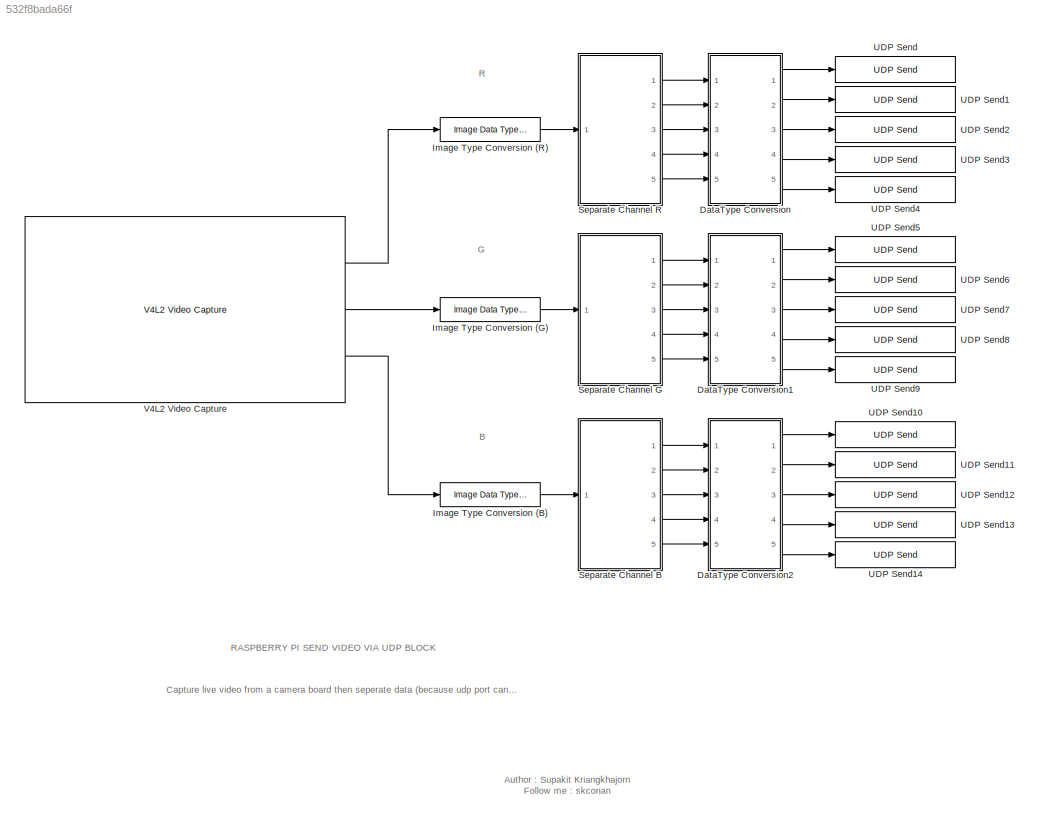
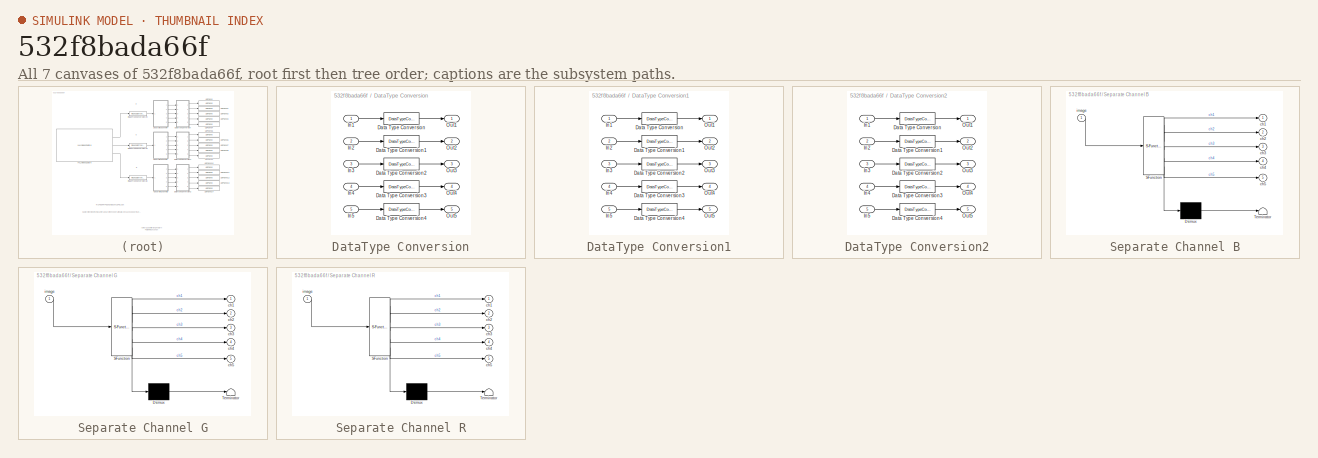
[diagram: thumbnail index - all 7 canvases of the model, root first then tree order]
MODEL slx_532f8bada66f
KIND model
CONFIG AbsTol = auto
CONFIG EnableMultiTasking = off
CONFIG FixedStep = auto
CONFIG MaxStep = auto
CONFIG MinStep = auto
CONFIG RelTol = 1e-3
CONFIG SampleTimeConstraint = Unconstrained
CONFIG Solver = FixedStepAuto
CONFIG SolverName = FixedStepAuto
CONFIG StartTime = 0.0
CONFIG StopTime = 10.0
BLOCK [SubSystem] DataType Conversion
  Ports = [5, 5]
  RequestExecContextInheritance = off
  Variant = off
BLOCK [DataTypeConversion] DataType Conversion/Data Type Conversion
  OutDataTypeStr = uint8
  RndMeth = Floor
  SaturateOnIntegerOverflow = off
BLOCK [DataTypeConversion] DataType Conversion/Data Type Conversion1
  OutDataTypeStr = uint8
  RndMeth = Floor
  SaturateOnIntegerOverflow = off
BLOCK [DataTypeConversion] DataType Conversion/Data Type Conversion2
  OutDataTypeStr = uint8
  RndMeth = Floor
  SaturateOnIntegerOverflow = off
BLOCK [DataTypeConversion] DataType Conversion/Data Type Conversion3
  OutDataTypeStr = uint8
  RndMeth = Floor
  SaturateOnIntegerOverflow = off
BLOCK [DataTypeConversion] DataType Conversion/Data Type Conversion4
  OutDataTypeStr = uint8
  RndMeth = Floor
  SaturateOnIntegerOverflow = off
BLOCK [Inport] DataType Conversion/In1
  IconDisplay = Port number
BLOCK [Inport] DataType Conversion/In2
  IconDisplay = Port number
  Port = 2
BLOCK [Inport] DataType Conversion/In3
  IconDisplay = Port number
  Port = 3
BLOCK [Inport] DataType Conversion/In4
  IconDisplay = Port number
  Port = 4
BLOCK [Inport] DataType Conversion/In5
  IconDisplay = Port number
  Port = 5
BLOCK [Outport] DataType Conversion/Out1
  IconDisplay = Port number
BLOCK [Outport] DataType Conversion/Out2
  IconDisplay = Port number
  Port = 2
BLOCK [Outport] DataType Conversion/Out3
  IconDisplay = Port number
  Port = 3
BLOCK [Outport] DataType Conversion/Out4
  IconDisplay = Port number
  Port = 4
BLOCK [Outport] DataType Conversion/Out5
  IconDisplay = Port number
  Port = 5
BLOCK [SubSystem] DataType Conversion1
  Ports = [5, 5]
  RequestExecContextInheritance = off
  Variant = off
BLOCK [DataTypeConversion] DataType Conversion1/Data Type Conversion
  OutDataTypeStr = uint8
  RndMeth = Floor
  SaturateOnIntegerOverflow = off
BLOCK [DataTypeConversion] DataType Conversion1/Data Type Conversion1
  OutDataTypeStr = uint8
  RndMeth = Floor
  SaturateOnIntegerOverflow = off
BLOCK [DataTypeConversion] DataType Conversion1/Data Type Conversion2
  OutDataTypeStr = uint8
  RndMeth = Floor
  SaturateOnIntegerOverflow = off
BLOCK [DataTypeConversion] DataType Conversion1/Data Type Conversion3
  OutDataTypeStr = uint8
  RndMeth = Floor
  SaturateOnIntegerOverflow = off
BLOCK [DataTypeConversion] DataType Conversion1/Data Type Conversion4
  OutDataTypeStr = uint8
  RndMeth = Floor
  SaturateOnIntegerOverflow = off
BLOCK [Inport] DataType Conversion1/In1
  IconDisplay = Port number
BLOCK [Inport] DataType Conversion1/In2
  IconDisplay = Port number
  Port = 2
BLOCK [Inport] DataType Conversion1/In3
  IconDisplay = Port number
  Port = 3
BLOCK [Inport] DataType Conversion1/In4
  IconDisplay = Port number
  Port = 4
BLOCK [Inport] DataType Conversion1/In5
  IconDisplay = Port number
  Port = 5
BLOCK [Outport] DataType Conversion1/Out1
  IconDisplay = Port number
BLOCK [Outport] DataType Conversion1/Out2
  IconDisplay = Port number
  Port = 2
BLOCK [Outport] DataType Conversion1/Out3
  IconDisplay = Port number
  Port = 3
BLOCK [Outport] DataType Conversion1/Out4
  IconDisplay = Port number
  Port = 4
BLOCK [Outport] DataType Conversion1/Out5
  IconDisplay = Port number
  Port = 5
BLOCK [SubSystem] DataType Conversion2
  Ports = [5, 5]
  RequestExecContextInheritance = off
  Variant = off
BLOCK [DataTypeConversion] DataType Conversion2/Data Type Conversion
  OutDataTypeStr = uint8
  RndMeth = Floor
  SaturateOnIntegerOverflow = off
BLOCK [DataTypeConversion] DataType Conversion2/Data Type Conversion1
  OutDataTypeStr = uint8
  RndMeth = Floor
  SaturateOnIntegerOverflow = off
BLOCK [DataTypeConversion] DataType Conversion2/Data Type Conversion2
  OutDataTypeStr = uint8
  RndMeth = Floor
  SaturateOnIntegerOverflow = off
BLOCK [DataTypeConversion] DataType Conversion2/Data Type Conversion3
  OutDataTypeStr = uint8
  RndMeth = Floor
  SaturateOnIntegerOverflow = off
BLOCK [DataTypeConversion] DataType Conversion2/Data Type Conversion4
  OutDataTypeStr = uint8
  RndMeth = Floor
  SaturateOnIntegerOverflow = off
BLOCK [Inport] DataType Conversion2/In1
  IconDisplay = Port number
BLOCK [Inport] DataType Conversion2/In2
  IconDisplay = Port number
  Port = 2
BLOCK [Inport] DataType Conversion2/In3
  IconDisplay = Port number
  Port = 3
BLOCK [Inport] DataType Conversion2/In4
  IconDisplay = Port number
  Port = 4
BLOCK [Inport] DataType Conversion2/In5
  IconDisplay = Port number
  Port = 5
BLOCK [Outport] DataType Conversion2/Out1
  IconDisplay = Port number
BLOCK [Outport] DataType Conversion2/Out2
  IconDisplay = Port number
  Port = 2
BLOCK [Outport] DataType Conversion2/Out3
  IconDisplay = Port number
  Port = 3
BLOCK [Outport] DataType Conversion2/Out4
  IconDisplay = Port number
  Port = 4
BLOCK [Outport] DataType Conversion2/Out5
  IconDisplay = Port number
  Port = 5
BLOCK [Reference] Image Type Conversion (B)   REF=visionconversions/Image Data Type
Conversion
  Ports = [1, 1]
  SourceBlock = visionconversions/Image Data Type\nConversion
  SourceType = Image Data Type Conversion
BLOCK [Reference] Image Type Conversion (G)   REF=visionconversions/Image Data Type
Conversion
  Ports = [1, 1]
  SourceBlock = visionconversions/Image Data Type\nConversion
  SourceType = Image Data Type Conversion
BLOCK [Reference] Image Type Conversion (R)   REF=visionconversions/Image Data Type
Conversion
  Ports = [1, 1]
  SourceBlock = visionconversions/Image Data Type\nConversion
  SourceType = Image Data Type Conversion
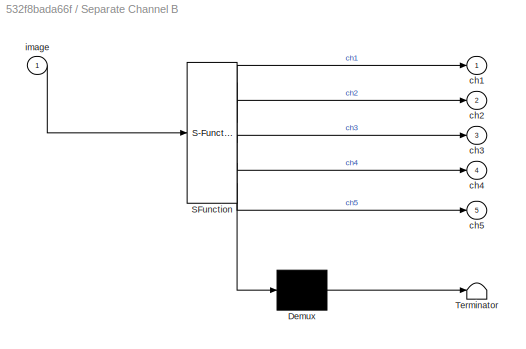
BLOCK [SubSystem] Separate Channel B
  ErrorFcn = Stateflow.Translate.translate
  PermitHierarchicalResolution = ExplicitOnly
  Ports = [1, 5]
  RequestExecContextInheritance = off
  SFBlockType = MATLAB Function
  TreatAsAtomicUnit = on
  Variant = off
BLOCK [Demux] Separate Channel B/ Demux 
  Outputs = 1
  Ports = [1, 1]
BLOCK [S-Function] Separate Channel B/ SFunction 
  EnableBusSupport = on
  FunctionName = sf_sfun
  PortCounts = [1 6]
  Ports = [1, 6]
  SFcnIsStateOwnerBlock = off
  SFunctionDeploymentMode = off
  Tag = Stateflow S-Function raspberry_pi_send_video 3
BLOCK [Terminator] Separate Channel B/ Terminator 
BLOCK [Outport] Separate Channel B/ch1
  IconDisplay = Port number
BLOCK [Outport] Separate Channel B/ch2
  IconDisplay = Port number
  Port = 2
BLOCK [Outport] Separate Channel B/ch3
  IconDisplay = Port number
  Port = 3
BLOCK [Outport] Separate Channel B/ch4
  IconDisplay = Port number
  Port = 4
BLOCK [Outport] Separate Channel B/ch5
  IconDisplay = Port number
  Port = 5
BLOCK [Inport] Separate Channel B/image
  IconDisplay = Port number
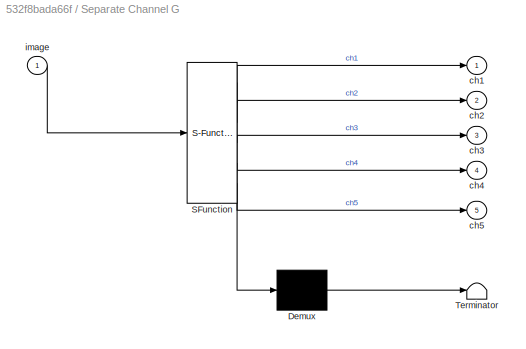
BLOCK [SubSystem] Separate Channel G
  ErrorFcn = Stateflow.Translate.translate
  PermitHierarchicalResolution = ExplicitOnly
  Ports = [1, 5]
  RequestExecContextInheritance = off
  SFBlockType = MATLAB Function
  TreatAsAtomicUnit = on
  Variant = off
BLOCK [Demux] Separate Channel G/ Demux 
  Outputs = 1
  Ports = [1, 1]
BLOCK [S-Function] Separate Channel G/ SFunction 
  EnableBusSupport = on
  FunctionName = sf_sfun
  PortCounts = [1 6]
  Ports = [1, 6]
  SFcnIsStateOwnerBlock = off
  SFunctionDeploymentMode = off
  Tag = Stateflow S-Function raspberry_pi_send_video 1
BLOCK [Terminator] Separate Channel G/ Terminator 
BLOCK [Outport] Separate Channel G/ch1
  IconDisplay = Port number
BLOCK [Outport] Separate Channel G/ch2
  IconDisplay = Port number
  Port = 2
BLOCK [Outport] Separate Channel G/ch3
  IconDisplay = Port number
  Port = 3
BLOCK [Outport] Separate Channel G/ch4
  IconDisplay = Port number
  Port = 4
BLOCK [Outport] Separate Channel G/ch5
  IconDisplay = Port number
  Port = 5
BLOCK [Inport] Separate Channel G/image
  IconDisplay = Port number
BLOCK [SubSystem] Separate Channel R
  ErrorFcn = Stateflow.Translate.translate
  PermitHierarchicalResolution = ExplicitOnly
  Ports = [1, 5]
  RequestExecContextInheritance = off
  SFBlockType = MATLAB Function
  TreatAsAtomicUnit = on
  Variant = off
BLOCK [Demux] Separate Channel R/ Demux 
  Outputs = 1
  Ports = [1, 1]
BLOCK [S-Function] Separate Channel R/ SFunction 
  EnableBusSupport = on
  FunctionName = sf_sfun
  PortCounts = [1 6]
  Ports = [1, 6]
  SFcnIsStateOwnerBlock = off
  SFunctionDeploymentMode = off
  Tag = Stateflow S-Function raspberry_pi_send_video 2
BLOCK [Terminator] Separate Channel R/ Terminator 
BLOCK [Outport] Separate Channel R/ch1
  IconDisplay = Port number
BLOCK [Outport] Separate Channel R/ch2
  IconDisplay = Port number
  Port = 2
BLOCK [Outport] Separate Channel R/ch3
  IconDisplay = Port number
  Port = 3
BLOCK [Outport] Separate Channel R/ch4
  IconDisplay = Port number
  Port = 4
BLOCK [Outport] Separate Channel R/ch5
  IconDisplay = Port number
  Port = 5
BLOCK [Inport] Separate Channel R/image
  IconDisplay = Port number
BLOCK [Reference] UDP Send  REF=embdlinuxlib/UDP Send
  Ports = [1]
  SourceBlock = embdlinuxlib/UDP Send
  SourceType = UDP Send
BLOCK [Reference] UDP Send1  REF=embdlinuxlib/UDP Send
  Ports = [1]
  SourceBlock = embdlinuxlib/UDP Send
  SourceType = UDP Send
BLOCK [Reference] UDP Send10  REF=embdlinuxlib/UDP Send
  Ports = [1]
  SourceBlock = embdlinuxlib/UDP Send
  SourceType = UDP Send
BLOCK [Reference] UDP Send11  REF=embdlinuxlib/UDP Send
  Ports = [1]
  SourceBlock = embdlinuxlib/UDP Send
  SourceType = UDP Send
BLOCK [Reference] UDP Send12  REF=embdlinuxlib/UDP Send
  Ports = [1]
  SourceBlock = embdlinuxlib/UDP Send
  SourceType = UDP Send
BLOCK [Reference] UDP Send13  REF=embdlinuxlib/UDP Send
  Ports = [1]
  SourceBlock = embdlinuxlib/UDP Send
  SourceType = UDP Send
BLOCK [Reference] UDP Send14  REF=embdlinuxlib/UDP Send
  Ports = [1]
  SourceBlock = embdlinuxlib/UDP Send
  SourceType = UDP Send
BLOCK [Reference] UDP Send2  REF=embdlinuxlib/UDP Send
  Ports = [1]
  SourceBlock = embdlinuxlib/UDP Send
  SourceType = UDP Send
BLOCK [Reference] UDP Send3  REF=embdlinuxlib/UDP Send
  Ports = [1]
  SourceBlock = embdlinuxlib/UDP Send
  SourceType = UDP Send
BLOCK [Reference] UDP Send4  REF=embdlinuxlib/UDP Send
  Ports = [1]
  SourceBlock = embdlinuxlib/UDP Send
  SourceType = UDP Send
BLOCK [Reference] UDP Send5  REF=embdlinuxlib/UDP Send
  Ports = [1]
  SourceBlock = embdlinuxlib/UDP Send
  SourceType = UDP Send
BLOCK [Reference] UDP Send6  REF=embdlinuxlib/UDP Send
  Ports = [1]
  SourceBlock = embdlinuxlib/UDP Send
  SourceType = UDP Send
BLOCK [Reference] UDP Send7  REF=embdlinuxlib/UDP Send
  Ports = [1]
  SourceBlock = embdlinuxlib/UDP Send
  SourceType = UDP Send
BLOCK [Reference] UDP Send8  REF=embdlinuxlib/UDP Send
  Ports = [1]
  SourceBlock = embdlinuxlib/UDP Send
  SourceType = UDP Send
BLOCK [Reference] UDP Send9  REF=embdlinuxlib/UDP Send
  Ports = [1]
  SourceBlock = embdlinuxlib/UDP Send
  SourceType = UDP Send
BLOCK [Reference] V4L2 Video Capture  REF=embdlinuxlib/V4L2 Video Capture
  Ports = [0, 3]
  SourceBlock = embdlinuxlib/V4L2 Video Capture
  SourceType = V4L2 Video Capture
ANNOTATION (root): Capture live video from a camera board then seperate data (because udp port cannot send large data) and send data via udp port.
ANNOTATION (root): Author : Supakit Kriangkhajorn Follow me : skconan
ANNOTATION (root): B
ANNOTATION (root): G
ANNOTATION (root): R
ANNOTATION (root): RASPBERRY PI SEND VIDEO VIA UDP BLOCK
LINE DataType Conversion/Data Type Conversion1:1 -> DataType Conversion/Out2:1
LINE DataType Conversion/Data Type Conversion2:1 -> DataType Conversion/Out3:1
LINE DataType Conversion/Data Type Conversion3:1 -> DataType Conversion/Out4:1
LINE DataType Conversion/Data Type Conversion4:1 -> DataType Conversion/Out5:1
LINE DataType Conversion/Data Type Conversion:1 -> DataType Conversion/Out1:1
LINE DataType Conversion/In1:1 -> DataType Conversion/Data Type Conversion:1
LINE DataType Conversion/In2:1 -> DataType Conversion/Data Type Conversion1:1
LINE DataType Conversion/In3:1 -> DataType Conversion/Data Type Conversion2:1
LINE DataType Conversion/In4:1 -> DataType Conversion/Data Type Conversion3:1
LINE DataType Conversion/In5:1 -> DataType Conversion/Data Type Conversion4:1
LINE DataType Conversion1/Data Type Conversion1:1 -> DataType Conversion1/Out2:1
LINE DataType Conversion1/Data Type Conversion2:1 -> DataType Conversion1/Out3:1
LINE DataType Conversion1/Data Type Conversion3:1 -> DataType Conversion1/Out4:1
LINE DataType Conversion1/Data Type Conversion4:1 -> DataType Conversion1/Out5:1
LINE DataType Conversion1/Data Type Conversion:1 -> DataType Conversion1/Out1:1
LINE DataType Conversion1/In1:1 -> DataType Conversion1/Data Type Conversion:1
LINE DataType Conversion1/In2:1 -> DataType Conversion1/Data Type Conversion1:1
LINE DataType Conversion1/In3:1 -> DataType Conversion1/Data Type Conversion2:1
LINE DataType Conversion1/In4:1 -> DataType Conversion1/Data Type Conversion3:1
LINE DataType Conversion1/In5:1 -> DataType Conversion1/Data Type Conversion4:1
LINE DataType Conversion1:1 -> UDP Send5:1
LINE DataType Conversion1:2 -> UDP Send6:1
LINE DataType Conversion1:3 -> UDP Send7:1
LINE DataType Conversion1:4 -> UDP Send8:1
LINE DataType Conversion1:5 -> UDP Send9:1
LINE DataType Conversion2/Data Type Conversion1:1 -> DataType Conversion2/Out2:1
LINE DataType Conversion2/Data Type Conversion2:1 -> DataType Conversion2/Out3:1
LINE DataType Conversion2/Data Type Conversion3:1 -> DataType Conversion2/Out4:1
LINE DataType Conversion2/Data Type Conversion4:1 -> DataType Conversion2/Out5:1
LINE DataType Conversion2/Data Type Conversion:1 -> DataType Conversion2/Out1:1
LINE DataType Conversion2/In1:1 -> DataType Conversion2/Data Type Conversion:1
LINE DataType Conversion2/In2:1 -> DataType Conversion2/Data Type Conversion1:1
LINE DataType Conversion2/In3:1 -> DataType Conversion2/Data Type Conversion2:1
LINE DataType Conversion2/In4:1 -> DataType Conversion2/Data Type Conversion3:1
LINE DataType Conversion2/In5:1 -> DataType Conversion2/Data Type Conversion4:1
LINE DataType Conversion2:1 -> UDP Send10:1
LINE DataType Conversion2:2 -> UDP Send11:1
LINE DataType Conversion2:3 -> UDP Send12:1
LINE DataType Conversion2:4 -> UDP Send13:1
LINE DataType Conversion2:5 -> UDP Send14:1
LINE DataType Conversion:1 -> UDP Send:1
LINE DataType Conversion:2 -> UDP Send1:1
LINE DataType Conversion:3 -> UDP Send2:1
LINE DataType Conversion:4 -> UDP Send3:1
LINE DataType Conversion:5 -> UDP Send4:1
LINE Image Type Conversion (B) :1 -> Separate Channel B:1
LINE Image Type Conversion (G) :1 -> Separate Channel G:1
LINE Image Type Conversion (R) :1 -> Separate Channel R:1
LINE Separate Channel B:1 -> DataType Conversion2:1
LINE Separate Channel B:2 -> DataType Conversion2:2
LINE Separate Channel B:3 -> DataType Conversion2:3
LINE Separate Channel B:4 -> DataType Conversion2:4
LINE Separate Channel B:5 -> DataType Conversion2:5
LINE Separate Channel G:1 -> DataType Conversion1:1
LINE Separate Channel G:2 -> DataType Conversion1:2
LINE Separate Channel G:3 -> DataType Conversion1:3
LINE Separate Channel G:4 -> DataType Conversion1:4
LINE Separate Channel G:5 -> DataType Conversion1:5
LINE Separate Channel R:1 -> DataType Conversion:1
LINE Separate Channel R:2 -> DataType Conversion:2
LINE Separate Channel R:3 -> DataType Conversion:3
LINE Separate Channel R:4 -> DataType Conversion:4
LINE Separate Channel R:5 -> DataType Conversion:5
LINE V4L2 Video Capture:1 -> Image Type Conversion (R) :1
LINE V4L2 Video Capture:2 -> Image Type Conversion (G) :1
LINE V4L2 Video Capture:3 -> Image Type Conversion (B) :1
CHART Separate Channel G states=1 transitions=1
  STATE_LABEL 'eML_blk_kernel()'
  STATE_LABEL 'SCRIPT:\nfunction [ch1,ch2,ch3,ch4,ch5] = separate(image)\nmaxlength = 76800;\ndividelength = 15360;\n\nimage = reshape(image,1,maxlength);\nch1 = image(1:dividelength);\nch2 = image(dividelength*1+1:dividelength*2);\nch3 = image(dividelength*2+1:dividelength*3);\nch4 = image(dividelength*3+1:dividelength*4);\nch5 = image(dividelength*4+1:dividelength*5);\n'  <repeated x3 — deduplicated; at blocks: Separate Channel G, Separate Channel R, Separate Channel B>
CHART Separate Channel R states=1 transitions=1
  STATE_LABEL 'eML_blk_kernel()'
CHART Separate Channel B states=1 transitions=1
  STATE_LABEL 'eML_blk_kernel()'
